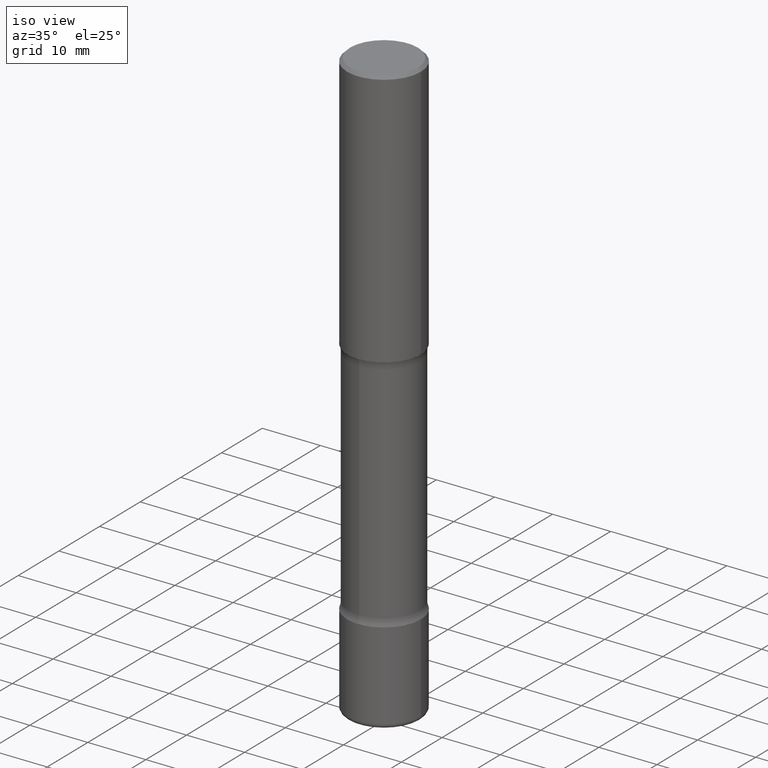
[diagram: clean part render]
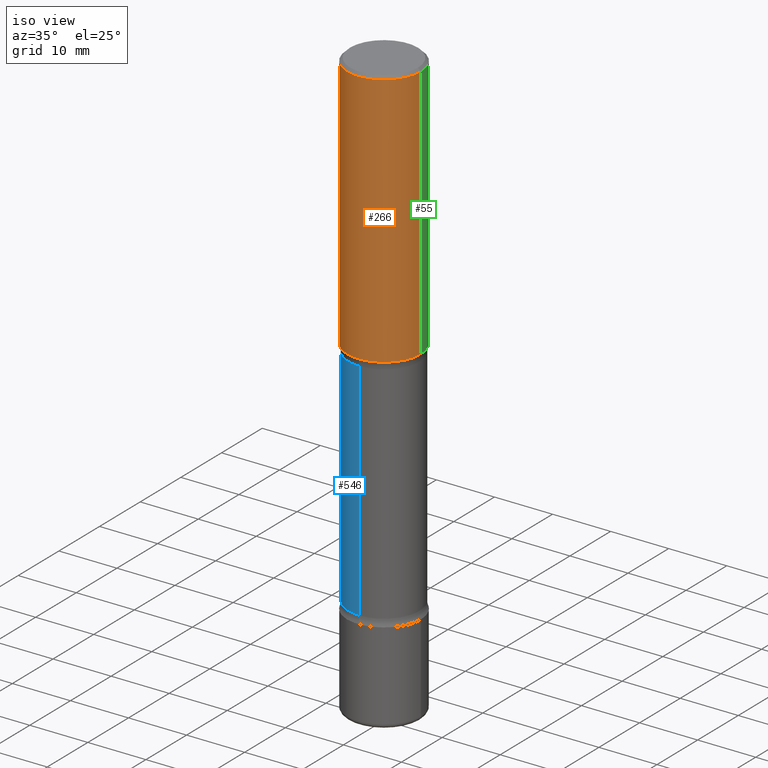
[diagram: same view with three faces highlighted in distinct colors, each labeled with its STEP entity id]
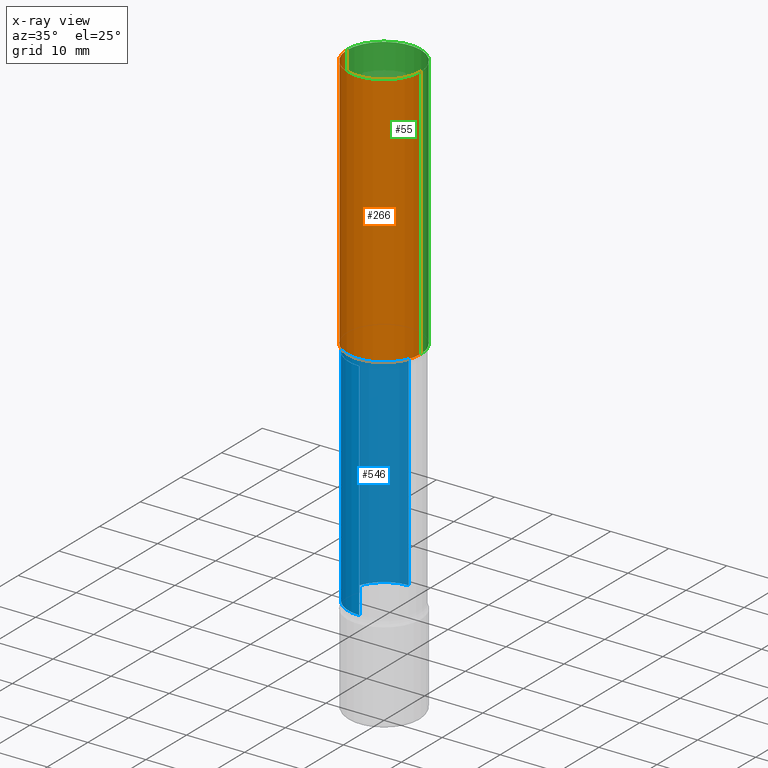
[diagram: x-ray of the same camera — body ghosted, the three highlighted faces saturated]
A machine part, iso view with three faces highlighted in distinct colors.
The next image is the same camera in x-ray (body ghosted, the three faces saturated) — at least one of them is partly hidden behind the body in this view.
Their STEP definitions:

[orange] entity #266 — the highlighted cylindrical surface (partial cylindrical patch) has radius 6.35 mm, axis along (-0, 0, 1).
#11 = DIRECTION ( 'NONE',  ( 1.000000000000000000, -6.982962677686267499E-15, 4.876176775795936353E-29 ) ) ;
#36 = AXIS2_PLACEMENT_3D ( 'NONE', #312, #100, #11 ) ;
#85 = ORIENTED_EDGE ( 'NONE', *, *, #488, .T. ) ;
#89 = DIRECTION ( 'NONE',  ( -2.445468806185136597E-29, 3.491481338843145583E-15, 1.000000000000000000 ) ) ;
#93 = DIRECTION ( 'NONE',  ( -2.445468806185136597E-29, 3.491481338843145583E-15, 1.000000000000000000 ) ) ;
#100 = DIRECTION ( 'NONE',  ( -2.445468806185136597E-29, 3.491481338843145583E-15, 1.000000000000000000 ) ) ;
#108 = VERTEX_POINT ( 'NONE', #236 ) ;
#142 = CARTESIAN_POINT ( 'NONE',  ( 4.279570410823988484E-29, -6.110092342975504671E-15, -1.750000000000000000 ) ) ;
#147 = DIRECTION ( 'NONE',  ( 1.000000000000000000, -6.982962677686267499E-15, 0.000000000000000000 ) ) ;
#149 = CARTESIAN_POINT ( 'NONE',  ( -0.2500000000000002220, 1.776356839400252042E-15, -1.229733772563727566E-29 ) ) ;
#154 = LINE ( 'NONE', #149, #357 ) ;
#162 = CIRCLE ( 'NONE', #483, 0.2500000000000003331 ) ;
#176 = VERTEX_POINT ( 'NONE', #406 ) ;
#185 = AXIS2_PLACEMENT_3D ( 'NONE', #491, #89, #147 ) ;
#194 = CARTESIAN_POINT ( 'NONE',  ( 0.2500000000000003331, -7.855833012397073715E-15, -1.750000000000000000 ) ) ;
#222 = DIRECTION ( 'NONE',  ( -2.445468806185136877E-29, 3.491481338843145188E-15, 1.000000000000000000 ) ) ;
#228 = ORIENTED_EDGE ( 'NONE', *, *, #237, .T. ) ;
#236 = CARTESIAN_POINT ( 'NONE',  ( 0.2500000000000001110, -1.784954126219746583E-15, -0.02000000000000000042 ) ) ;
#237 = EDGE_CURVE ( 'NONE', #379, #431, #162, .T. ) ;
#266 = ADVANCED_FACE ( 'NONE', ( #477 ), #326, .T. ) ;
#272 = DIRECTION ( 'NONE',  ( 1.000000000000000000, -6.982962677686265133E-15, 0.000000000000000000 ) ) ;
#274 = CARTESIAN_POINT ( 'NONE',  ( 0.2500000000000002220, -1.745740669421568453E-15, 1.219044193948985209E-29 ) ) ;
#277 = VECTOR ( 'NONE', #495, 39.37007874015748143 ) ;
#301 = EDGE_CURVE ( 'NONE', #176, #108, #517, .T. ) ;
#312 = CARTESIAN_POINT ( 'NONE',  ( 0.000000000000000000, 0.000000000000000000, 0.000000000000000000 ) ) ;
#326 = CYLINDRICAL_SURFACE ( 'NONE', #36, 0.2500000000000002220 ) ;
#357 = VECTOR ( 'NONE', #222, 39.37007874015748143 ) ;
#379 = VERTEX_POINT ( 'NONE', #499 ) ;
#380 = EDGE_CURVE ( 'NONE', #379, #176, #154, .T. ) ;
#388 = ORIENTED_EDGE ( 'NONE', *, *, #380, .F. ) ;
#406 = CARTESIAN_POINT ( 'NONE',  ( -0.2500000000000001110, 1.675911042644704760E-15, -0.02000000000000000042 ) ) ;
#431 = VERTEX_POINT ( 'NONE', #194 ) ;
#449 = LINE ( 'NONE', #274, #277 ) ;
#477 = FACE_OUTER_BOUND ( 'NONE', #527, .T. ) ;
#483 = AXIS2_PLACEMENT_3D ( 'NONE', #142, #93, #272 ) ;
#488 = EDGE_CURVE ( 'NONE', #431, #108, #449, .T. ) ;
#491 = CARTESIAN_POINT ( 'NONE',  ( 4.890937612370273159E-31, -6.982962677686291609E-17, -0.02000000000000000042 ) ) ;
#495 = DIRECTION ( 'NONE',  ( -2.445468806185136877E-29, 3.491481338843145188E-15, 1.000000000000000000 ) ) ;
#498 = ORIENTED_EDGE ( 'NONE', *, *, #301, .F. ) ;
#499 = CARTESIAN_POINT ( 'NONE',  ( -0.2500000000000003331, -1.313604145475929576E-15, -1.750000000000000000 ) ) ;
#517 = CIRCLE ( 'NONE', #185, 0.2500000000000001110 ) ;
#527 = EDGE_LOOP ( 'NONE', ( #388, #228, #85, #498 ) ) ;

[blue] entity #546 — the highlighted cylindrical surface (partial cylindrical patch) has radius 6.096 mm, axis along (0, -0, -1).
#14 = EDGE_CURVE ( 'NONE', #68, #31, #109, .T. ) ;
#31 = VERTEX_POINT ( 'NONE', #336 ) ;
#35 = AXIS2_PLACEMENT_3D ( 'NONE', #249, #353, #520 ) ;
#38 = ORIENTED_EDGE ( 'NONE', *, *, #227, .T. ) ;
#68 = VERTEX_POINT ( 'NONE', #505 ) ;
#88 = VECTOR ( 'NONE', #271, 39.37007874015748143 ) ;
#105 = DIRECTION ( 'NONE',  ( 2.131045706918198209E-29, -3.941753112844835198E-15, -1.000000000000000000 ) ) ;
#109 = CIRCLE ( 'NONE', #35, 0.2399999999999999356 ) ;
#113 = ORIENTED_EDGE ( 'NONE', *, *, #281, .F. ) ;
#159 = FACE_OUTER_BOUND ( 'NONE', #196, .T. ) ;
#191 = CARTESIAN_POINT ( 'NONE',  ( 1.675911042644796465E-15, 0.2399999999999853084, -4.000000000000001776 ) ) ;
#196 = EDGE_LOOP ( 'NONE', ( #113, #38, #286, #362 ) ) ;
#197 = DIRECTION ( 'NONE',  ( 6.982962677686265922E-15, 1.000000000000000000, -4.553079989440446980E-15 ) ) ;
#221 = CARTESIAN_POINT ( 'NONE',  ( 4.894907439142729913E-29, -5.571506386592702620E-15, -1.798989794855663904 ) ) ;
#227 = EDGE_CURVE ( 'NONE', #426, #493, #464, .T. ) ;
#249 = CARTESIAN_POINT ( 'NONE',  ( 8.149057728864868240E-29, -1.159064384222567188E-14, -3.326010205144335430 ) ) ;
#267 = AXIS2_PLACEMENT_3D ( 'NONE', #221, #361, #536 ) ;
#271 = DIRECTION ( 'NONE',  ( 2.131045706918198209E-29, -3.941753112844835198E-15, -1.000000000000000000 ) ) ;
#280 = CARTESIAN_POINT ( 'NONE',  ( 1.675911042644746767E-15, 0.2399999999999935796, -1.798989794855664792 ) ) ;
#281 = EDGE_CURVE ( 'NONE', #426, #68, #364, .T. ) ;
#283 = CARTESIAN_POINT ( 'NONE',  ( -1.680822009453971188E-15, -0.2400000000000047373, -1.798989794855663016 ) ) ;
#285 = EDGE_CURVE ( 'NONE', #493, #31, #487, .T. ) ;
#286 = ORIENTED_EDGE ( 'NONE', *, *, #285, .T. ) ;
#300 = VECTOR ( 'NONE', #318, 39.37007874015748143 ) ;
#318 = DIRECTION ( 'NONE',  ( 2.131045706918198209E-29, -3.941753112844835198E-15, -1.000000000000000000 ) ) ;
#336 = CARTESIAN_POINT ( 'NONE',  ( 1.675911042644784829E-15, 0.2399999999999883615, -3.326010205144336762 ) ) ;
#353 = DIRECTION ( 'NONE',  ( 2.131045706918198209E-29, -3.941753112844835198E-15, -1.000000000000000000 ) ) ;
#361 = DIRECTION ( 'NONE',  ( 2.131045706918198209E-29, -3.941753112844835198E-15, -1.000000000000000000 ) ) ;
#362 = ORIENTED_EDGE ( 'NONE', *, *, #14, .F. ) ;
#364 = LINE ( 'NONE', #535, #300 ) ;
#426 = VERTEX_POINT ( 'NONE', #283 ) ;
#464 = CIRCLE ( 'NONE', #267, 0.2399999999999991585 ) ;
#473 = AXIS2_PLACEMENT_3D ( 'NONE', #558, #105, #197 ) ;
#487 = LINE ( 'NONE', #191, #88 ) ;
#493 = VERTEX_POINT ( 'NONE', #280 ) ;
#505 = CARTESIAN_POINT ( 'NONE',  ( -1.680822009453943775E-15, -0.2400000000000115097, -3.326010205144334542 ) ) ;
#510 = CYLINDRICAL_SURFACE ( 'NONE', #473, 0.2399999999999995470 ) ;
#520 = DIRECTION ( 'NONE',  ( 6.982962677686265922E-15, 1.000000000000000000, -4.553079989440439881E-15 ) ) ;
#535 = CARTESIAN_POINT ( 'NONE',  ( -1.646519519465068557E-15, -0.2400000000000137856, -4.000000000000000000 ) ) ;
#536 = DIRECTION ( 'NONE',  ( 6.982962677686265922E-15, 1.000000000000000000, -3.414809992080340955E-15 ) ) ;
#546 = ADVANCED_FACE ( 'NONE', ( #159 ), #510, .T. ) ;
#558 = CARTESIAN_POINT ( 'NONE',  ( 9.585360787698712522E-29, -1.424734521412364332E-14, -4.000000000000000888 ) ) ;

[green] entity #55 — the highlighted cylindrical surface (partial cylindrical patch) has radius 6.35 mm, axis along (-0, 0, 1).
#3 = ORIENTED_EDGE ( 'NONE', *, *, #30, .F. ) ;
#18 = EDGE_CURVE ( 'NONE', #431, #379, #96, .T. ) ;
#21 = EDGE_LOOP ( 'NONE', ( #295, #44, #3, #292 ) ) ;
#23 = DIRECTION ( 'NONE',  ( 1.000000000000000000, -6.982962677686267499E-15, 4.876176775795936353E-29 ) ) ;
#29 = FACE_OUTER_BOUND ( 'NONE', #21, .T. ) ;
#30 = EDGE_CURVE ( 'NONE', #108, #176, #496, .T. ) ;
#32 = CARTESIAN_POINT ( 'NONE',  ( 0.000000000000000000, 0.000000000000000000, 0.000000000000000000 ) ) ;
#44 = ORIENTED_EDGE ( 'NONE', *, *, #380, .T. ) ;
#55 = ADVANCED_FACE ( 'NONE', ( #29 ), #338, .T. ) ;
#67 = DIRECTION ( 'NONE',  ( 1.000000000000000000, -6.982962677686265133E-15, 0.000000000000000000 ) ) ;
#76 = AXIS2_PLACEMENT_3D ( 'NONE', #32, #165, #23 ) ;
#96 = CIRCLE ( 'NONE', #177, 0.2500000000000003331 ) ;
#108 = VERTEX_POINT ( 'NONE', #236 ) ;
#149 = CARTESIAN_POINT ( 'NONE',  ( -0.2500000000000002220, 1.776356839400252042E-15, -1.229733772563727566E-29 ) ) ;
#154 = LINE ( 'NONE', #149, #357 ) ;
#165 = DIRECTION ( 'NONE',  ( -2.445468806185136597E-29, 3.491481338843145583E-15, 1.000000000000000000 ) ) ;
#176 = VERTEX_POINT ( 'NONE', #406 ) ;
#177 = AXIS2_PLACEMENT_3D ( 'NONE', #259, #200, #67 ) ;
#194 = CARTESIAN_POINT ( 'NONE',  ( 0.2500000000000003331, -7.855833012397073715E-15, -1.750000000000000000 ) ) ;
#200 = DIRECTION ( 'NONE',  ( -2.445468806185136597E-29, 3.491481338843145583E-15, 1.000000000000000000 ) ) ;
#222 = DIRECTION ( 'NONE',  ( -2.445468806185136877E-29, 3.491481338843145188E-15, 1.000000000000000000 ) ) ;
#236 = CARTESIAN_POINT ( 'NONE',  ( 0.2500000000000001110, -1.784954126219746583E-15, -0.02000000000000000042 ) ) ;
#253 = AXIS2_PLACEMENT_3D ( 'NONE', #455, #554, #555 ) ;
#259 = CARTESIAN_POINT ( 'NONE',  ( 4.279570410823988484E-29, -6.110092342975504671E-15, -1.750000000000000000 ) ) ;
#274 = CARTESIAN_POINT ( 'NONE',  ( 0.2500000000000002220, -1.745740669421568453E-15, 1.219044193948985209E-29 ) ) ;
#277 = VECTOR ( 'NONE', #495, 39.37007874015748143 ) ;
#292 = ORIENTED_EDGE ( 'NONE', *, *, #488, .F. ) ;
#295 = ORIENTED_EDGE ( 'NONE', *, *, #18, .T. ) ;
#338 = CYLINDRICAL_SURFACE ( 'NONE', #76, 0.2500000000000002220 ) ;
#357 = VECTOR ( 'NONE', #222, 39.37007874015748143 ) ;
#379 = VERTEX_POINT ( 'NONE', #499 ) ;
#380 = EDGE_CURVE ( 'NONE', #379, #176, #154, .T. ) ;
#406 = CARTESIAN_POINT ( 'NONE',  ( -0.2500000000000001110, 1.675911042644704760E-15, -0.02000000000000000042 ) ) ;
#431 = VERTEX_POINT ( 'NONE', #194 ) ;
#449 = LINE ( 'NONE', #274, #277 ) ;
#455 = CARTESIAN_POINT ( 'NONE',  ( 4.890937612370273159E-31, -6.982962677686291609E-17, -0.02000000000000000042 ) ) ;
#488 = EDGE_CURVE ( 'NONE', #431, #108, #449, .T. ) ;
#495 = DIRECTION ( 'NONE',  ( -2.445468806185136877E-29, 3.491481338843145188E-15, 1.000000000000000000 ) ) ;
#496 = CIRCLE ( 'NONE', #253, 0.2500000000000001110 ) ;
#499 = CARTESIAN_POINT ( 'NONE',  ( -0.2500000000000003331, -1.313604145475929576E-15, -1.750000000000000000 ) ) ;
#554 = DIRECTION ( 'NONE',  ( -2.445468806185136597E-29, 3.491481338843145583E-15, 1.000000000000000000 ) ) ;
#555 = DIRECTION ( 'NONE',  ( 1.000000000000000000, -6.982962677686267499E-15, 0.000000000000000000 ) ) ;